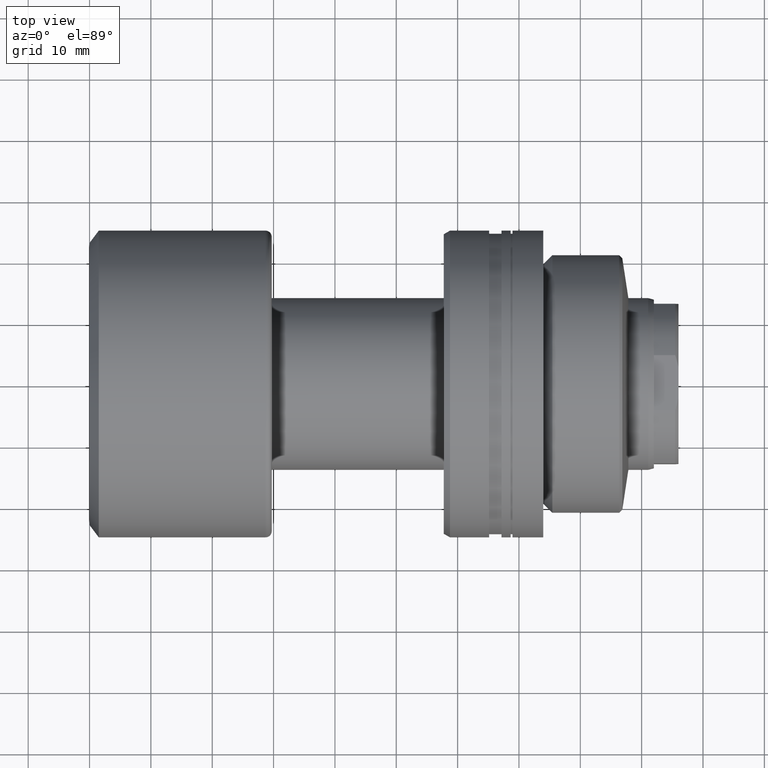
[diagram: clean part render]
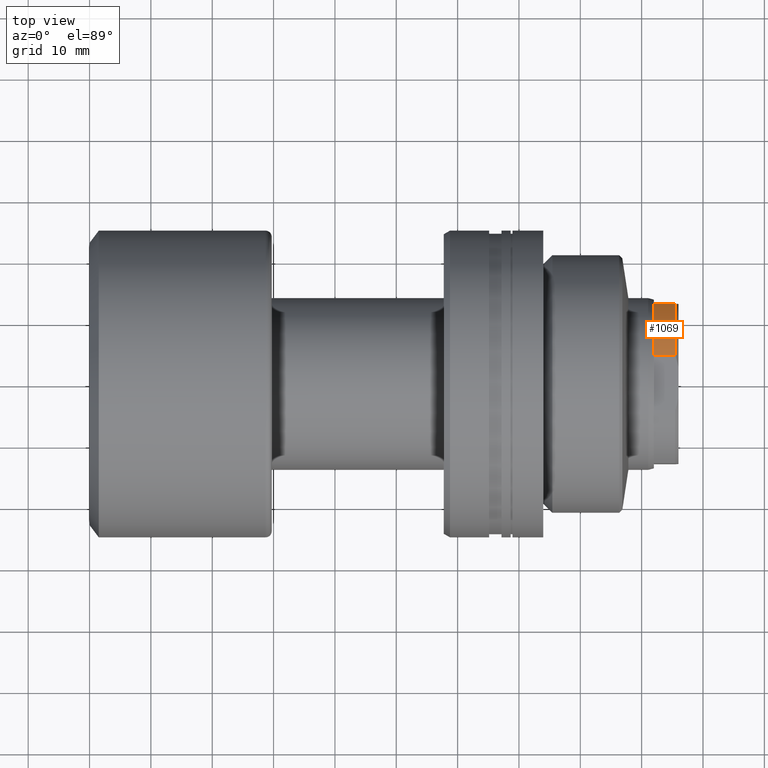
[diagram: same view with one face highlighted and labeled with its STEP entity id]
A machine part, top view. The second image highlights one B-rep face of the part: STEP entity #1069.
In plain terms, the highlighted cylindrical surface (partial cylindrical patch) has radius 13.75 mm, axis along (-1, -0, -0).
Its self-contained STEP definition (entity closure, byte-faithful):
#113 = EDGE_CURVE ( 'NONE', #1590, #1414, #1581, .T. ) ;
#142 = LINE ( 'NONE', #165, #681 ) ;
#165 = CARTESIAN_POINT ( 'NONE',  ( 92.00000000000007105, 4.479118216793724017, 12.99999999999950795 ) ) ;
#209 = ORIENTED_EDGE ( 'NONE', *, *, #113, .F. ) ;
#297 = AXIS2_PLACEMENT_3D ( 'NONE', #1458, #438, #1593 ) ;
#361 = EDGE_LOOP ( 'NONE', ( #1232, #502, #209, #472 ) ) ;
#367 = DIRECTION ( 'NONE',  ( -1.000000000000000000, -1.069542322069063027E-17, -0.000000000000000000 ) ) ;
#438 = DIRECTION ( 'NONE',  ( -1.000000000000000000, -1.069542322069065801E-17, -0.000000000000000000 ) ) ;
#472 = ORIENTED_EDGE ( 'NONE', *, *, #530, .F. ) ;
#502 = ORIENTED_EDGE ( 'NONE', *, *, #2170, .T. ) ;
#530 = EDGE_CURVE ( 'NONE', #1691, #1590, #1305, .T. ) ;
#562 = FACE_OUTER_BOUND ( 'NONE', #361, .T. ) ;
#681 = VECTOR ( 'NONE', #1021, 1000.000000000000000 ) ;
#706 = EDGE_CURVE ( 'NONE', #1691, #1910, #142, .T. ) ;
#769 = CIRCLE ( 'NONE', #2257, 13.75000000000000178 ) ;
#1021 = DIRECTION ( 'NONE',  ( 1.000000000000000000, -1.657264799492230625E-14, -0.000000000000000000 ) ) ;
#1029 = CARTESIAN_POINT ( 'NONE',  ( 95.49999999999998579, 12.99999999999890576, 4.479118216792405072 ) ) ;
#1058 = DIRECTION ( 'NONE',  ( 0.000000000000000000, -1.000000000000000000, 0.000000000000000000 ) ) ;
#1069 = ADVANCED_FACE ( 'NONE', ( #562 ), #1093, .T. ) ;
#1093 = CYLINDRICAL_SURFACE ( 'NONE', #1348, 13.75000000000000178 ) ;
#1147 = CARTESIAN_POINT ( 'NONE',  ( 0.000000000000000000, 0.000000000000000000, 0.000000000000000000 ) ) ;
#1232 = ORIENTED_EDGE ( 'NONE', *, *, #706, .T. ) ;
#1297 = DIRECTION ( 'NONE',  ( -1.000000000000000000, -1.069542322069065801E-17, -0.000000000000000000 ) ) ;
#1305 = CIRCLE ( 'NONE', #297, 13.75000000000000178 ) ;
#1348 = AXIS2_PLACEMENT_3D ( 'NONE', #1147, #1297, #1637 ) ;
#1406 = CARTESIAN_POINT ( 'NONE',  ( 92.00000000000007105, 4.479118216793724017, 12.99999999999950795 ) ) ;
#1414 = VERTEX_POINT ( 'NONE', #1029 ) ;
#1458 = CARTESIAN_POINT ( 'NONE',  ( 92.00000000000014211, 9.839789363035420220E-16, 0.000000000000000000 ) ) ;
#1581 = LINE ( 'NONE', #2306, #1787 ) ;
#1590 = VERTEX_POINT ( 'NONE', #2128 ) ;
#1593 = DIRECTION ( 'NONE',  ( 0.000000000000000000, -1.000000000000000000, 0.000000000000000000 ) ) ;
#1637 = DIRECTION ( 'NONE',  ( 1.069542322069065801E-17, -1.000000000000000000, 0.000000000000000000 ) ) ;
#1691 = VERTEX_POINT ( 'NONE', #1406 ) ;
#1697 = CARTESIAN_POINT ( 'NONE',  ( 95.49999999999998579, 4.479118216793666285, 12.99999999999950795 ) ) ;
#1787 = VECTOR ( 'NONE', #2225, 1000.000000000000000 ) ;
#1910 = VERTEX_POINT ( 'NONE', #1697 ) ;
#1958 = CARTESIAN_POINT ( 'NONE',  ( 95.49999999999998579, 1.021412917575957674E-15, 0.000000000000000000 ) ) ;
#2128 = CARTESIAN_POINT ( 'NONE',  ( 92.00000000000022737, 12.99999999999896438, 4.479118216792405072 ) ) ;
#2170 = EDGE_CURVE ( 'NONE', #1910, #1414, #769, .T. ) ;
#2225 = DIRECTION ( 'NONE',  ( 1.000000000000000000, -1.657264799492230625E-14, -0.000000000000000000 ) ) ;
#2257 = AXIS2_PLACEMENT_3D ( 'NONE', #1958, #367, #1058 ) ;
#2306 = CARTESIAN_POINT ( 'NONE',  ( 92.00000000000022737, 12.99999999999896438, 4.479118216792405072 ) ) ;